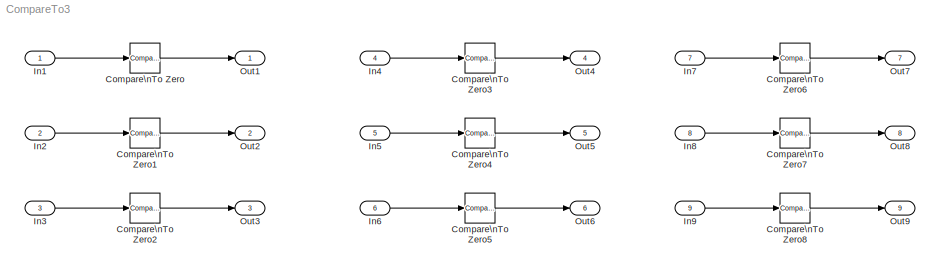
MODEL CompareTo3
KIND model
BLOCK [Reference] Compare\nTo Zero  REF=simulink/Logic and Bit\nOperations/Compare\nTo Zero
  OutDataTypeStr = boolean
  Ports = [1, 1]
  SID = 2
  SourceBlock = simulink/Logic and Bit\nOperations/Compare\nTo Zero
  SourceProductBaseCode = SL
  SourceProductName = Simulink
  SourceType = Compare To Zero
  ZeroCross = on
  relop = <=
BLOCK [Reference] Compare\nTo Zero1  REF=simulink/Logic and Bit\nOperations/Compare\nTo Zero
  OutDataTypeStr = boolean
  Ports = [1, 1]
  SID = 10
  SourceBlock = simulink/Logic and Bit\nOperations/Compare\nTo Zero
  SourceProductBaseCode = SL
  SourceProductName = Simulink
  SourceType = Compare To Zero
  ZeroCross = on
  relop = <=
BLOCK [Reference] Compare\nTo Zero2  REF=simulink/Logic and Bit\nOperations/Compare\nTo Zero
  OutDataTypeStr = boolean
  Ports = [1, 1]
  SID = 13
  SourceBlock = simulink/Logic and Bit\nOperations/Compare\nTo Zero
  SourceProductBaseCode = SL
  SourceProductName = Simulink
  SourceType = Compare To Zero
  ZeroCross = on
  relop = <=
BLOCK [Reference] Compare\nTo Zero3  REF=simulink/Logic and Bit\nOperations/Compare\nTo Zero
  OutDataTypeStr = boolean
  Ports = [1, 1]
  SID = 29
  SourceBlock = simulink/Logic and Bit\nOperations/Compare\nTo Zero
  SourceProductBaseCode = SL
  SourceProductName = Simulink
  SourceType = Compare To Zero
  ZeroCross = on
  relop = <=
BLOCK [Reference] Compare\nTo Zero4  REF=simulink/Logic and Bit\nOperations/Compare\nTo Zero
  OutDataTypeStr = boolean
  Ports = [1, 1]
  SID = 30
  SourceBlock = simulink/Logic and Bit\nOperations/Compare\nTo Zero
  SourceProductBaseCode = SL
  SourceProductName = Simulink
  SourceType = Compare To Zero
  ZeroCross = on
  relop = <=
BLOCK [Reference] Compare\nTo Zero5  REF=simulink/Logic and Bit\nOperations/Compare\nTo Zero
  OutDataTypeStr = boolean
  Ports = [1, 1]
  SID = 31
  SourceBlock = simulink/Logic and Bit\nOperations/Compare\nTo Zero
  SourceProductBaseCode = SL
  SourceProductName = Simulink
  SourceType = Compare To Zero
  ZeroCross = on
  relop = <=
BLOCK [Reference] Compare\nTo Zero6  REF=simulink/Logic and Bit\nOperations/Compare\nTo Zero
  OutDataTypeStr = boolean
  Ports = [1, 1]
  SID = 38
  SourceBlock = simulink/Logic and Bit\nOperations/Compare\nTo Zero
  SourceProductBaseCode = SL
  SourceProductName = Simulink
  SourceType = Compare To Zero
  ZeroCross = on
  relop = <=
BLOCK [Reference] Compare\nTo Zero7  REF=simulink/Logic and Bit\nOperations/Compare\nTo Zero
  OutDataTypeStr = boolean
  Ports = [1, 1]
  SID = 39
  SourceBlock = simulink/Logic and Bit\nOperations/Compare\nTo Zero
  SourceProductBaseCode = SL
  SourceProductName = Simulink
  SourceType = Compare To Zero
  ZeroCross = on
  relop = <=
BLOCK [Reference] Compare\nTo Zero8  REF=simulink/Logic and Bit\nOperations/Compare\nTo Zero
  OutDataTypeStr = boolean
  Ports = [1, 1]
  SID = 40
  SourceBlock = simulink/Logic and Bit\nOperations/Compare\nTo Zero
  SourceProductBaseCode = SL
  SourceProductName = Simulink
  SourceType = Compare To Zero
  ZeroCross = on
  relop = <=
BLOCK [Inport] In1
  IconDisplay = Port number
  OutDataTypeStr = double
  SID = 6
BLOCK [Inport] In2
  IconDisplay = Port number
  OutDataTypeStr = int8
  Port = 2
  SID = 9
BLOCK [Inport] In3
  IconDisplay = Port number
  OutDataTypeStr = boolean
  Port = 3
  SID = 12
BLOCK [Inport] In4
  IconDisplay = Port number
  OutDataTypeStr = double
  Port = 4
  PortDimensions = 3
  SID = 26
BLOCK [Inport] In5
  IconDisplay = Port number
  OutDataTypeStr = int8
  Port = 5
  PortDimensions = 3
  SID = 27
BLOCK [Inport] In6
  IconDisplay = Port number
  OutDataTypeStr = boolean
  Port = 6
  PortDimensions = 3
  SID = 28
BLOCK [Inport] In7
  IconDisplay = Port number
  OutDataTypeStr = double
  Port = 7
  PortDimensions = [2 3]
  SID = 35
BLOCK [Inport] In8
  IconDisplay = Port number
  OutDataTypeStr = int8
  Port = 8
  PortDimensions = [2 3]
  SID = 36
BLOCK [Inport] In9
  IconDisplay = Port number
  OutDataTypeStr = boolean
  Port = 9
  PortDimensions = [2 3]
  SID = 37
BLOCK [Outport] Out1
  IconDisplay = Port number
  SID = 8
BLOCK [Outport] Out2
  IconDisplay = Port number
  Port = 2
  SID = 11
BLOCK [Outport] Out3
  IconDisplay = Port number
  Port = 3
  SID = 14
BLOCK [Outport] Out4
  IconDisplay = Port number
  Port = 4
  SID = 32
BLOCK [Outport] Out5
  IconDisplay = Port number
  Port = 5
  SID = 33
BLOCK [Outport] Out6
  IconDisplay = Port number
  Port = 6
  SID = 34
BLOCK [Outport] Out7
  IconDisplay = Port number
  Port = 7
  SID = 41
BLOCK [Outport] Out8
  IconDisplay = Port number
  Port = 8
  SID = 42
BLOCK [Outport] Out9
  IconDisplay = Port number
  Port = 9
  SID = 43
LINE Compare\nTo Zero1:1 -> Out2:1
LINE Compare\nTo Zero2:1 -> Out3:1
LINE Compare\nTo Zero3:1 -> Out4:1
LINE Compare\nTo Zero4:1 -> Out5:1
LINE Compare\nTo Zero5:1 -> Out6:1
LINE Compare\nTo Zero6:1 -> Out7:1
LINE Compare\nTo Zero7:1 -> Out8:1
LINE Compare\nTo Zero8:1 -> Out9:1
LINE Compare\nTo Zero:1 -> Out1:1
LINE In1:1 -> Compare\nTo Zero:1
LINE In2:1 -> Compare\nTo Zero1:1
LINE In3:1 -> Compare\nTo Zero2:1
LINE In4:1 -> Compare\nTo Zero3:1
LINE In5:1 -> Compare\nTo Zero4:1
LINE In6:1 -> Compare\nTo Zero5:1
LINE In7:1 -> Compare\nTo Zero6:1
LINE In8:1 -> Compare\nTo Zero7:1
LINE In9:1 -> Compare\nTo Zero8:1
